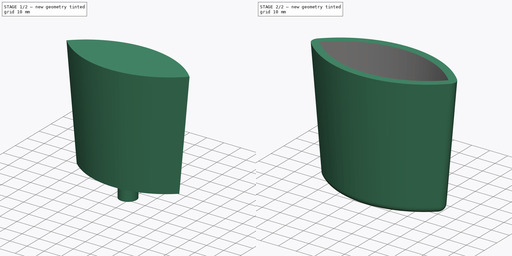
[diagram: build sequence overview — one tinted view per stage of 2, left to right]
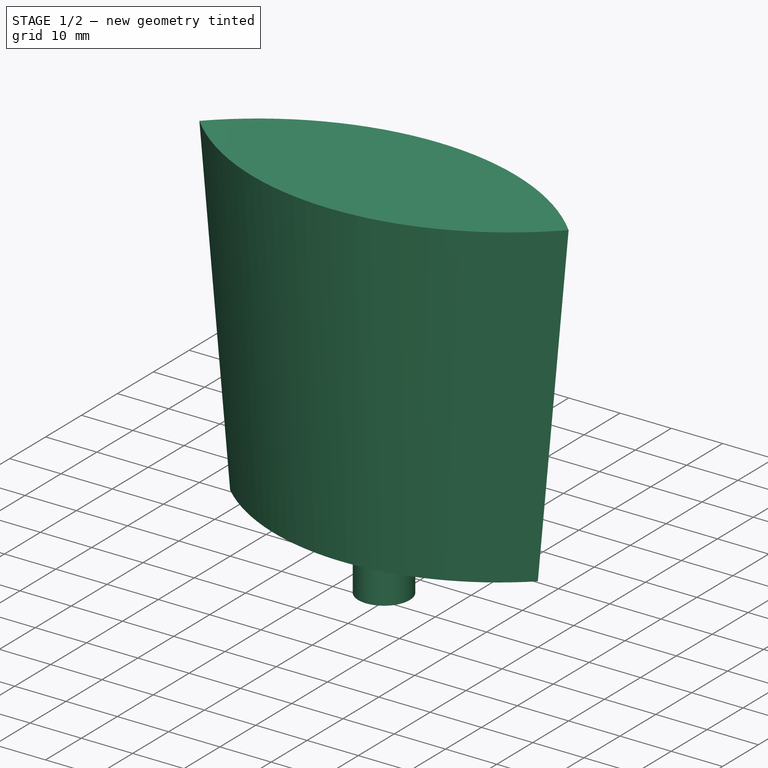
[diagram: stage 1 of 2 — iso view after this stage's code; geometry added in this stage tinted green]
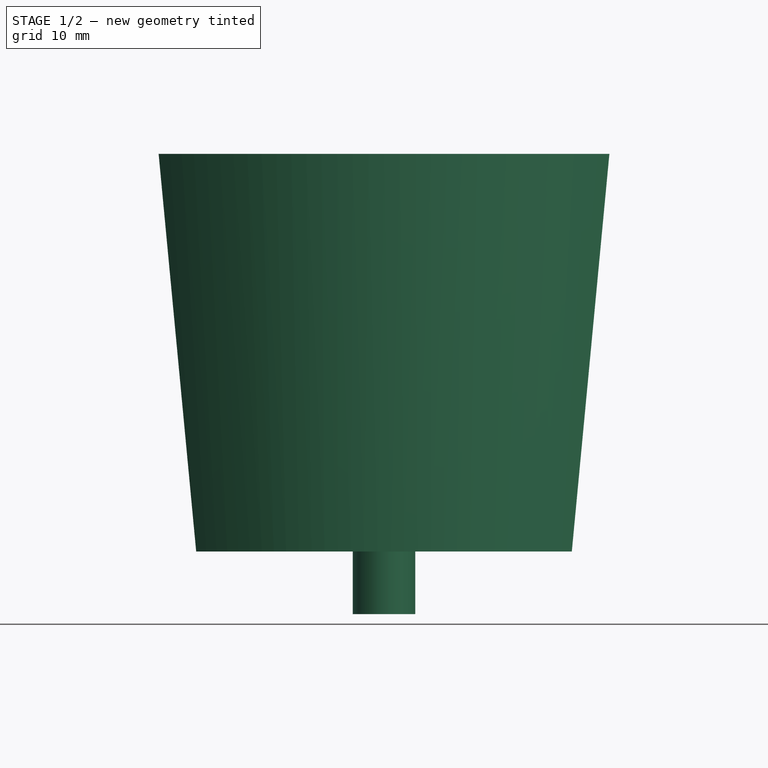
[diagram: stage 1 of 2 — front view after this stage's code; geometry added in this stage tinted green]
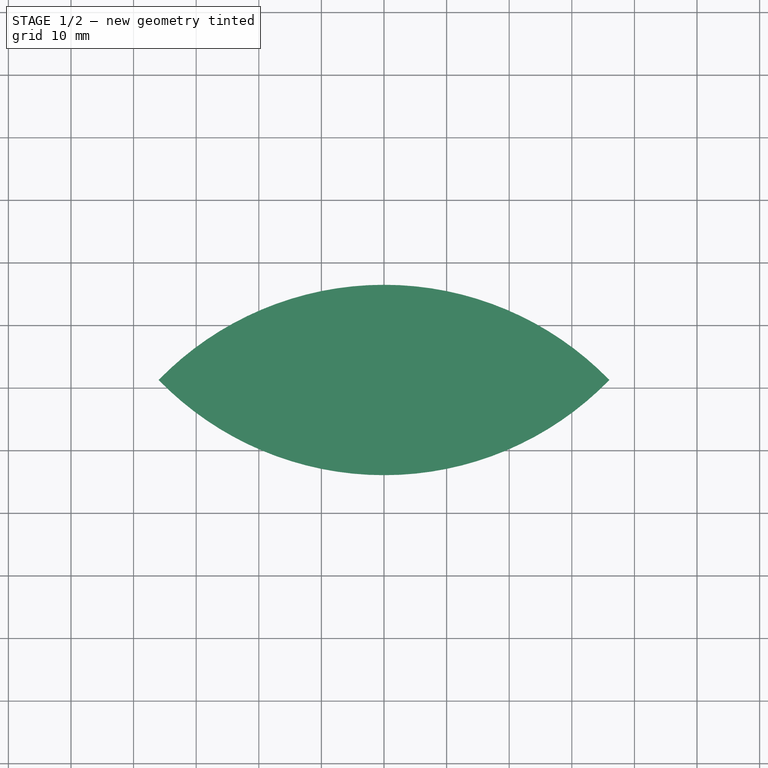
[diagram: stage 1 of 2 — top view after this stage's code; geometry added in this stage tinted green]
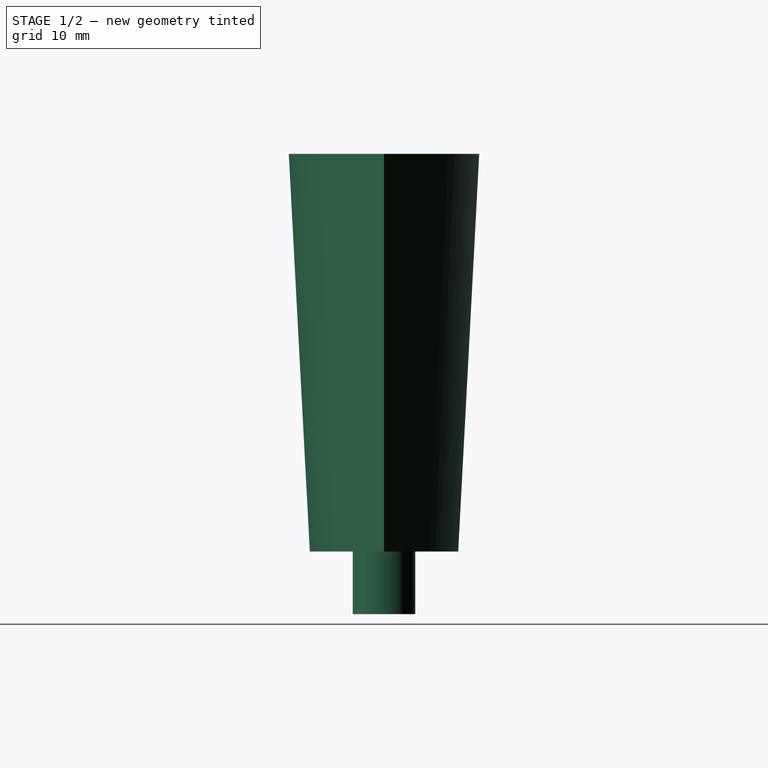
[diagram: stage 1 of 2 — right view after this stage's code; geometry added in this stage tinted green]
FCSTD DOCUMENT  (FreeCAD 0.16R6706 (Git))
Label: LamparaRosaura-V2
License: All rights reserved
LicenseURL: http://en.wikipedia.org/wiki/All_rights_reserved
objects: Sketcher::SketchObject×2, Part::Loft×1, Part::Thickness×1, Part::Cylinder×1, Part::Cut×1
note: 6 computed .brp shape members not serialized (recipe doc carries the construction recipe); baked Part::Feature solids carry a one-line shape summary decoded from their .brp

FEATURE [Sketcher::SketchObject] Sketch001  label="Base"
  sketch-geometry (2):
    g0: ArcOfCircle CenterX=0 CenterY=-32 CenterZ=0 NormalX=0 NormalY=0 NormalZ=1 Radius=43.8634 StartAngle=0.817645 EndAngle=2.32395
    g1: ArcOfCircle CenterX=0 CenterY=32 CenterZ=0 NormalX=0 NormalY=0 NormalZ=1 Radius=43.8634 StartAngle=3.95924 EndAngle=5.46554
  constraints (8):
    c: PointOnObject(g0,g-2)
    c: PointOnObject(g0,g-1)
    c: PointOnObject(g1,g-1)
    c: Coincident(g0,g1)
    c: Coincident(g0,g1)
    c: DistanceX(g0,g0) = 60
    c: DistanceY(g-1,g1) = 32
    c: DistanceY(g0,g-1) = 32
FEATURE [Sketcher::SketchObject] Sketch002  label="Fin"
  Placement = pos=(0,0,63.5) rot=(0,0,1;0rad)
  sketch-geometry (2):
    g0: ArcOfCircle CenterX=0 CenterY=-35 CenterZ=0 NormalX=0 NormalY=0 NormalZ=1 Radius=50.2096 StartAngle=0.771315 EndAngle=2.37028
    g1: ArcOfCircle CenterX=0 CenterY=35 CenterZ=0 NormalX=0 NormalY=0 NormalZ=1 Radius=50.2096 StartAngle=3.91291 EndAngle=5.51187
  constraints (8):
    c: PointOnObject(g0,g-2)
    c: PointOnObject(g0,g-1)
    c: PointOnObject(g1,g-1)
    c: Coincident(g0,g1)
    c: Coincident(g0,g1)
    c: DistanceX(g0,g0) = 72
    c: DistanceY(g-1,g1) = 35
    c: DistanceY(g0,g-1) = 35
FEATURE [Part::Loft] Loft
  Closed = false
  Ruled = false
  Sections = -> [Sketch001,Sketch002]
  Solid = true
FEATURE [Part::Cylinder] Cylinder  label="Cilindro"
  Angle = 360
  Height = 20
  Placement = pos=(0,0,-10) rot=(0,0,1;0rad)
  Radius = 5
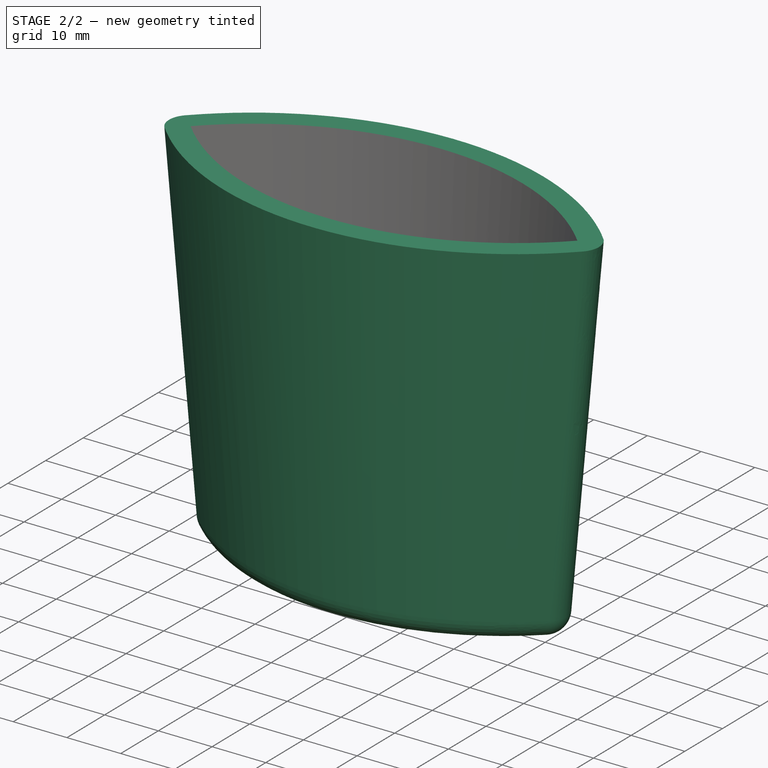
[diagram: stage 2 of 2 — iso view after this stage's code; geometry added in this stage tinted green]
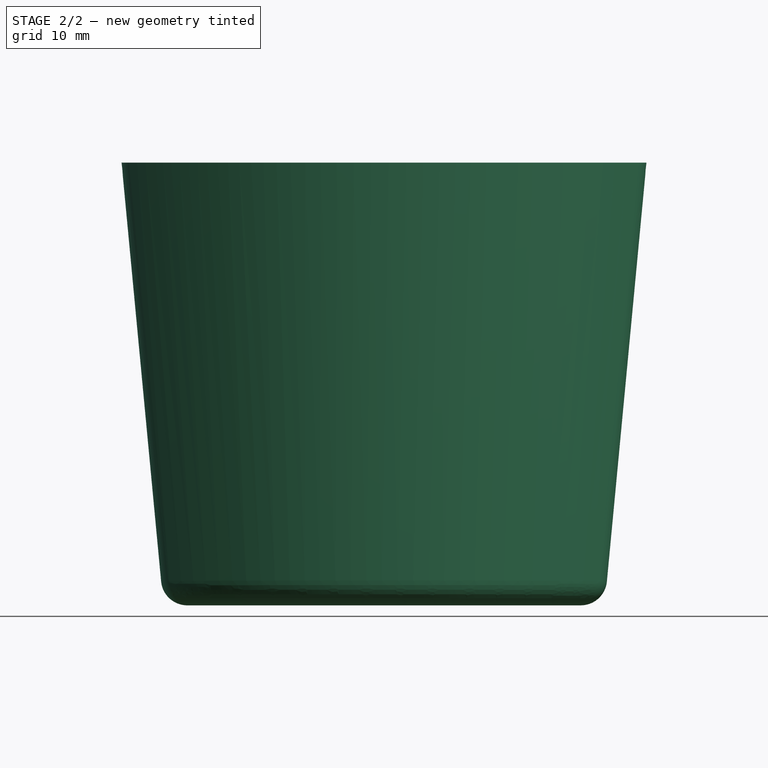
[diagram: stage 2 of 2 — front view after this stage's code; geometry added in this stage tinted green]
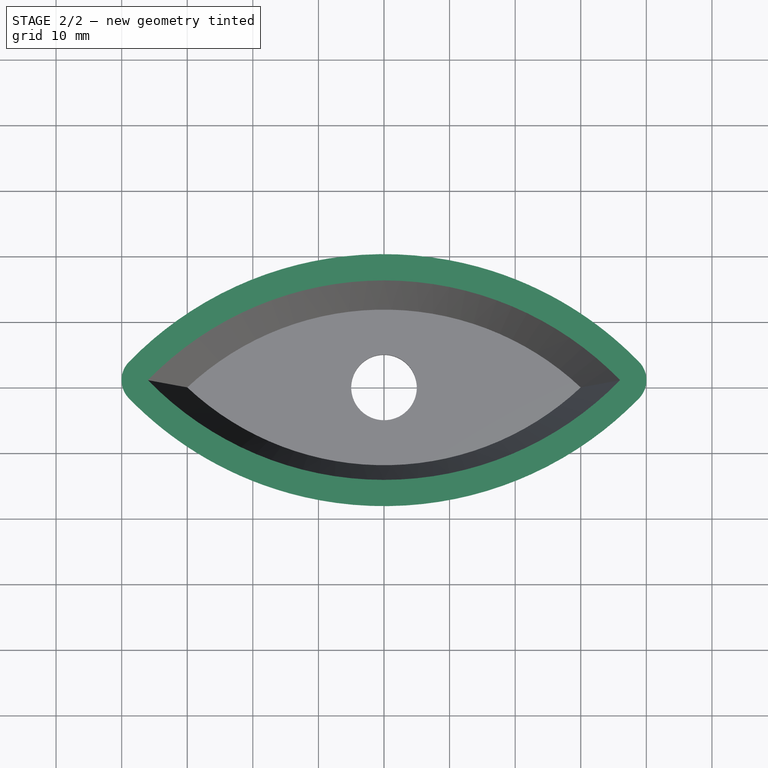
[diagram: stage 2 of 2 — top view after this stage's code; geometry added in this stage tinted green]
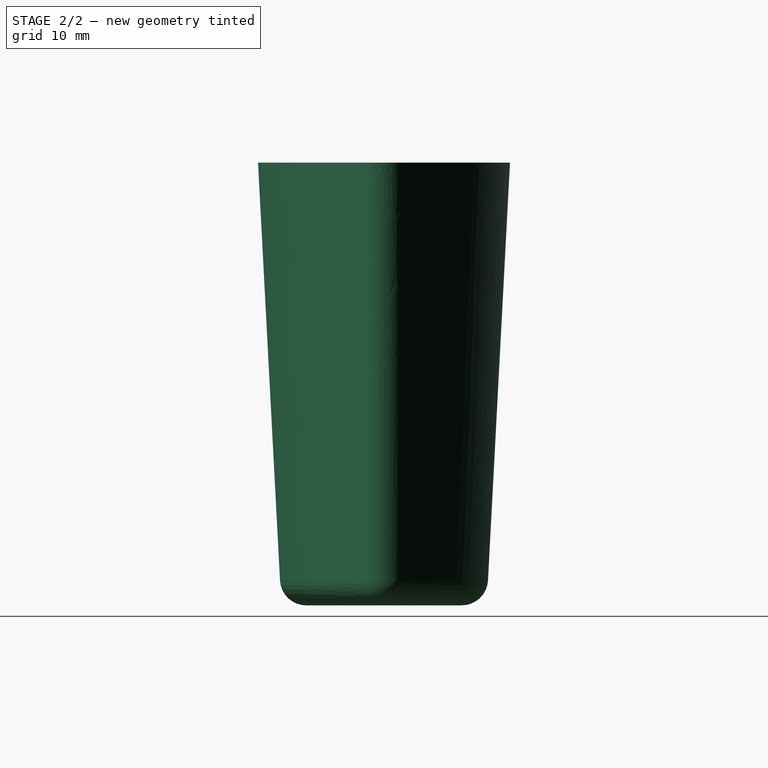
[diagram: stage 2 of 2 — right view after this stage's code; geometry added in this stage tinted green]
FEATURE [Part::Thickness] Thickness
  Faces = -> Loft [Face4]
  Intersection = false
  Join = 0
  Mode = 0
  SelfIntersection = false
  Value = 4
FEATURE [Part::Cut] Cut  label="LamparaRosaura"
  Base = -> Thickness
  Tool = -> Cylinder
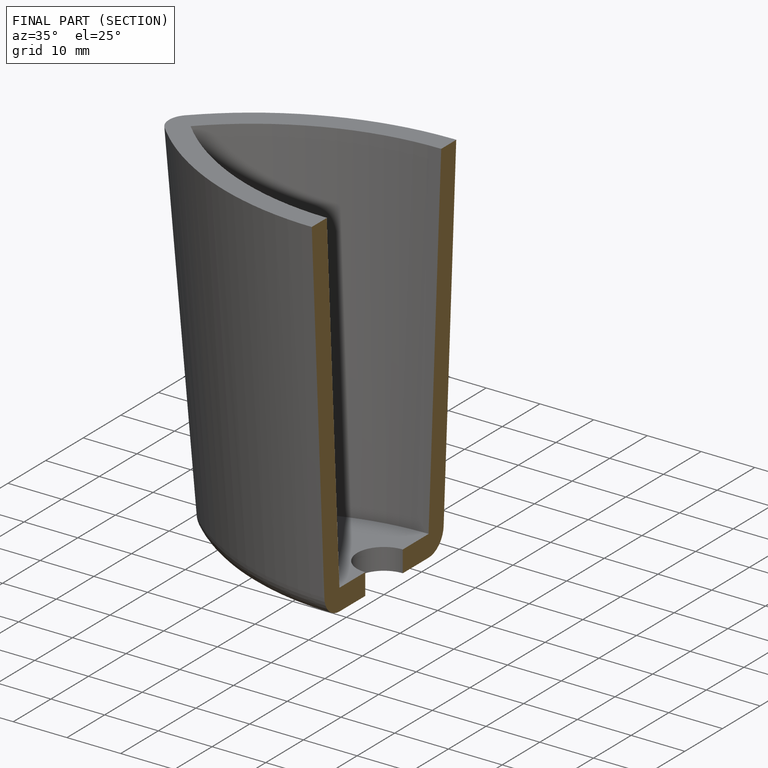
[diagram: finished part — half-section view (interior)]
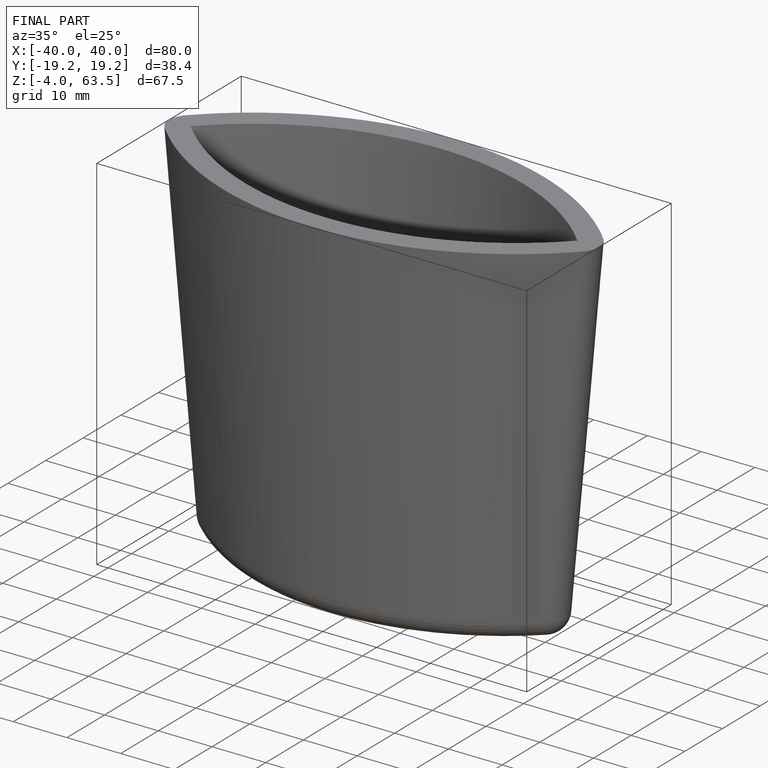
[diagram: finished part — iso view with bounding-box wireframe]
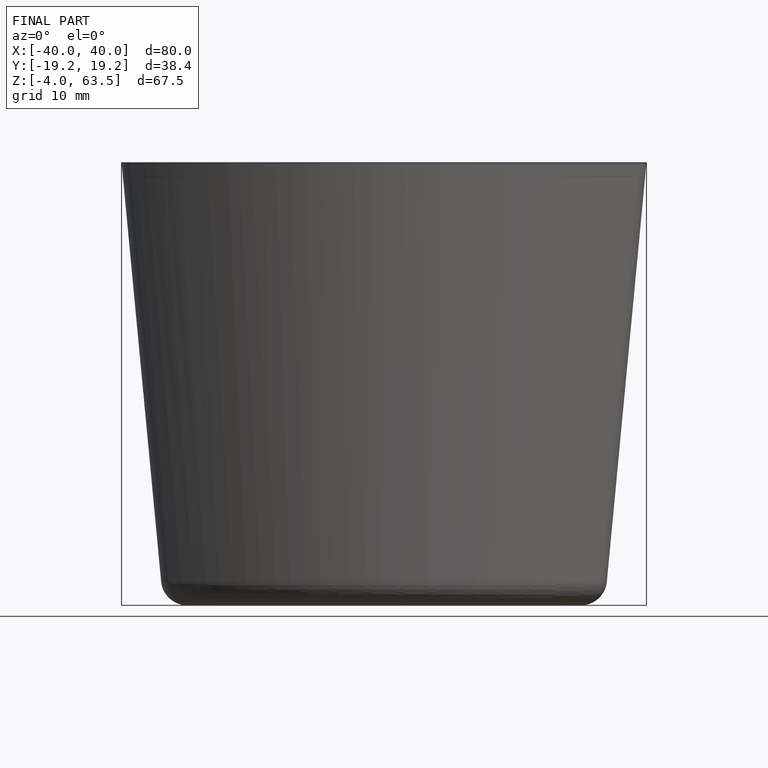
[diagram: finished part — front view with bounding-box wireframe]
